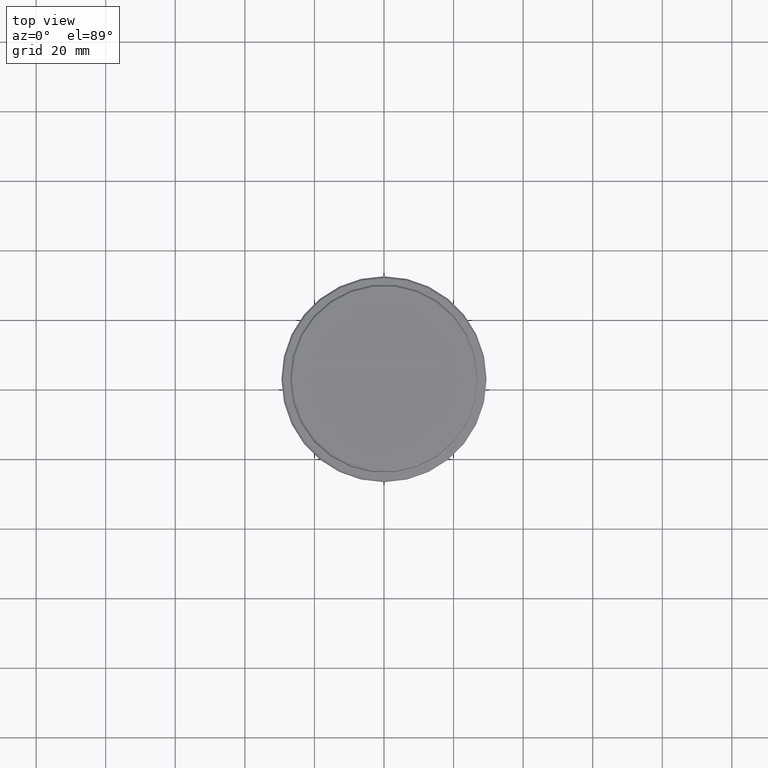
[diagram: clean part render]
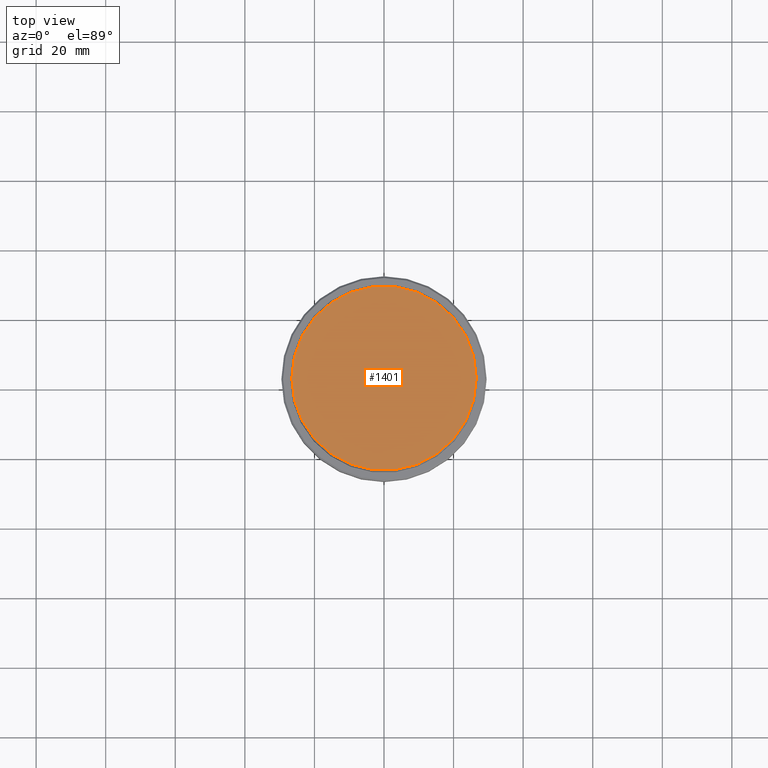
[diagram: same view with one face highlighted and labeled with its STEP entity id]
A machine part, top view. The second image highlights one B-rep face of the part: STEP entity #1401.
In plain terms, the highlighted planar face has unit normal (0, -0, 1).
Its self-contained STEP definition (entity closure, byte-faithful):
#53 = DIRECTION ( 'NONE',  ( 0.000000000000000000, -0.000000000000000000, 1.000000000000000000 ) ) ;
#69 = CIRCLE ( 'NONE', #754, 26.50000000000002487 ) ;
#123 = DIRECTION ( 'NONE',  ( -0.000000000000000000, -0.000000000000000000, 1.000000000000000000 ) ) ;
#255 = VERTEX_POINT ( 'NONE', #316 ) ;
#268 = AXIS2_PLACEMENT_3D ( 'NONE', #1177, #1313, #610 ) ;
#293 = DIRECTION ( 'NONE',  ( 1.000000000000000000, 0.000000000000000000, 0.000000000000000000 ) ) ;
#316 = CARTESIAN_POINT ( 'NONE',  ( 26.50000000000002487, 3.275930187719171524E-15, 0.000000000000000000 ) ) ;
#357 = FACE_OUTER_BOUND ( 'NONE', #1132, .T. ) ;
#398 = AXIS2_PLACEMENT_3D ( 'NONE', #482, #53, #293 ) ;
#403 = CARTESIAN_POINT ( 'NONE',  ( -26.50000000000002487, 0.000000000000000000, 0.000000000000000000 ) ) ;
#431 = EDGE_CURVE ( 'NONE', #255, #1045, #708, .T. ) ;
#482 = CARTESIAN_POINT ( 'NONE',  ( 0.000000000000000000, 0.000000000000000000, 0.000000000000000000 ) ) ;
#610 = DIRECTION ( 'NONE',  ( 1.000000000000000000, 0.000000000000000000, 0.000000000000000000 ) ) ;
#708 = CIRCLE ( 'NONE', #268, 26.50000000000002487 ) ;
#754 = AXIS2_PLACEMENT_3D ( 'NONE', #1317, #123, #1029 ) ;
#861 = EDGE_CURVE ( 'NONE', #1045, #255, #69, .T. ) ;
#925 = PLANE ( 'NONE',  #398 ) ;
#1029 = DIRECTION ( 'NONE',  ( 1.000000000000000000, 0.000000000000000000, 0.000000000000000000 ) ) ;
#1045 = VERTEX_POINT ( 'NONE', #403 ) ;
#1068 = ORIENTED_EDGE ( 'NONE', *, *, #431, .T. ) ;
#1132 = EDGE_LOOP ( 'NONE', ( #1260, #1068 ) ) ;
#1177 = CARTESIAN_POINT ( 'NONE',  ( 0.000000000000000000, 0.000000000000000000, 0.000000000000000000 ) ) ;
#1260 = ORIENTED_EDGE ( 'NONE', *, *, #861, .T. ) ;
#1313 = DIRECTION ( 'NONE',  ( -0.000000000000000000, -0.000000000000000000, 1.000000000000000000 ) ) ;
#1317 = CARTESIAN_POINT ( 'NONE',  ( 0.000000000000000000, 0.000000000000000000, 0.000000000000000000 ) ) ;
#1401 = ADVANCED_FACE ( 'NONE', ( #357 ), #925, .T. ) ;